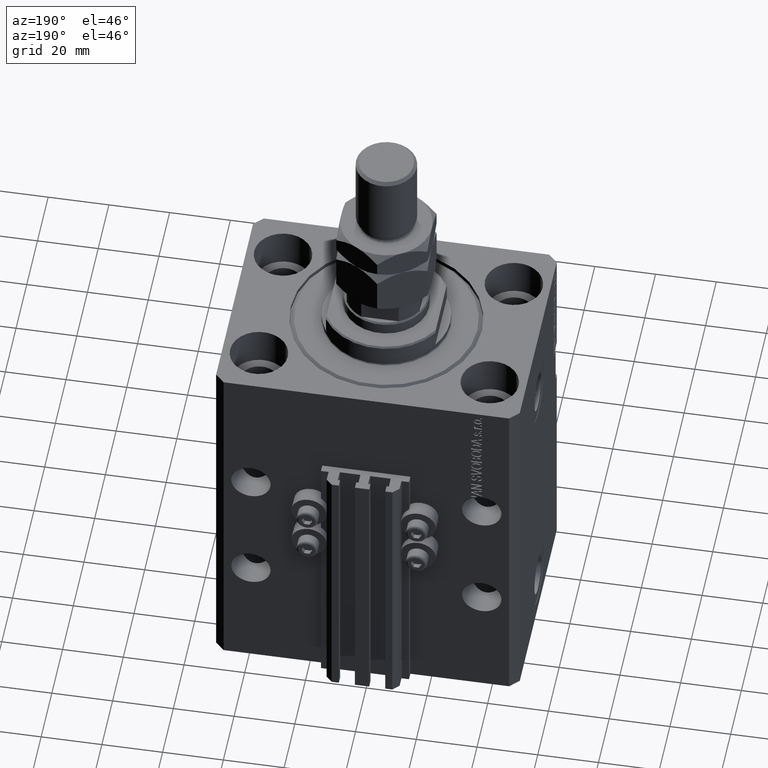
[diagram: clean part render]
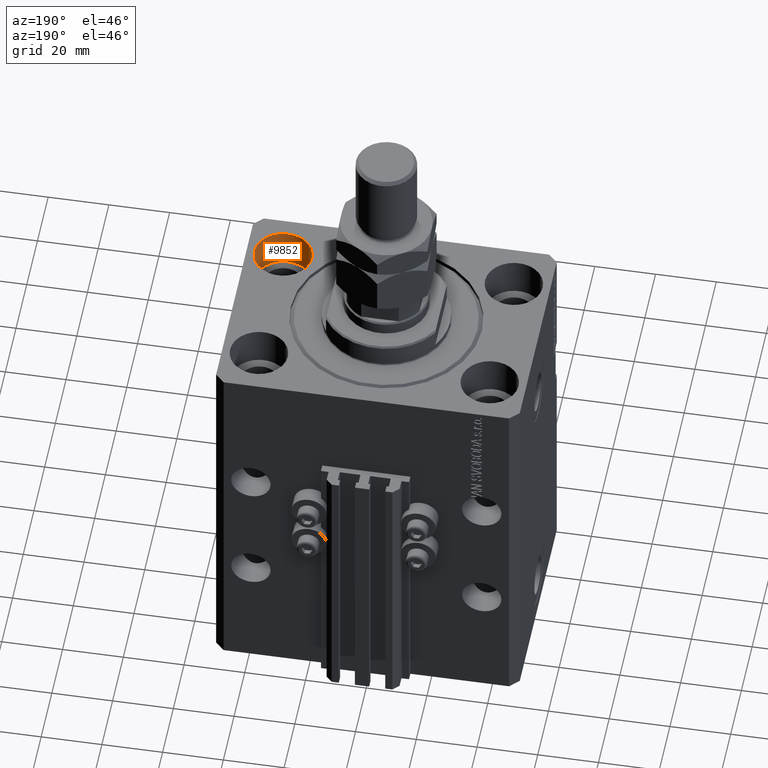
[diagram: same view with one face highlighted and labeled with its STEP entity id]
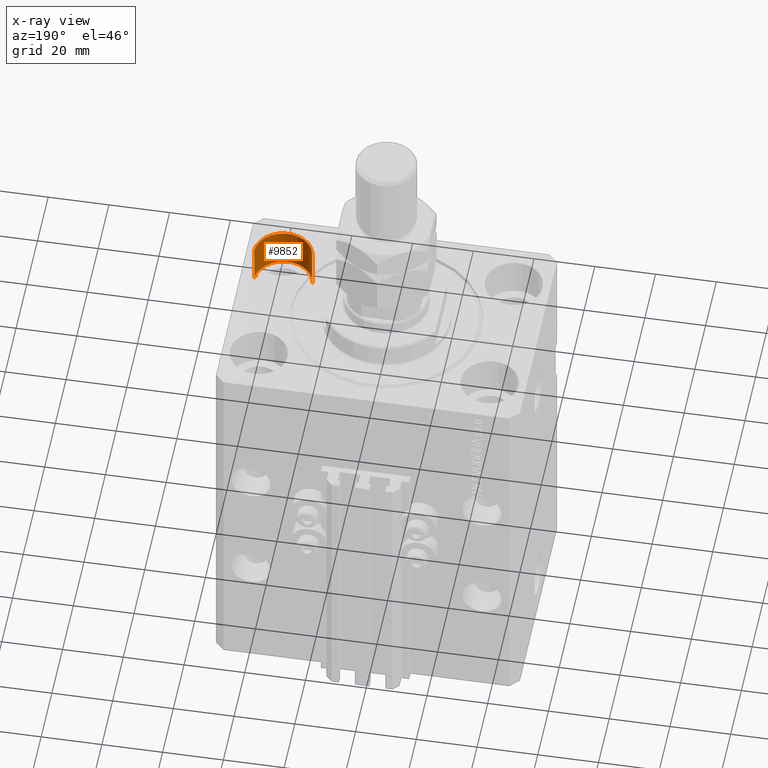
[diagram: x-ray of the same camera — body ghosted, the highlighted face saturated]
A machine part, auxiliary view. The second image highlights one B-rep face of the part: STEP entity #9852.
The next image is the same camera in x-ray: the body ghosted, the highlighted face saturated — about 0% of this face is hidden behind the body in this view.
In plain terms, the highlighted cylindrical surface (edge-blend (fillet) strip) has radius 9.5 mm, axis along (0, 0, 1).
Its self-contained STEP definition (entity closure, byte-faithful):
#3332 = VERTEX_POINT ( 'NONE', #44823 ) ;
#7215 = CARTESIAN_POINT ( 'NONE',  ( 47.50000000000000711, -22.50000000000000000, -13.00000000000000000 ) ) ;
#8516 = CARTESIAN_POINT ( 'NONE',  ( 47.50000000000000711, -22.50000000000000000, 0.000000000000000000 ) ) ;
#9218 = EDGE_CURVE ( 'NONE', #12915, #3332, #37258, .T. ) ;
#9852 = ADVANCED_FACE ( 'NONE', ( #33307 ), #48833, .F. ) ;
#11244 = DIRECTION ( 'NONE',  ( 1.000000000000000000, 0.000000000000000000, 0.000000000000000000 ) ) ;
#12915 = VERTEX_POINT ( 'NONE', #20307 ) ;
#13529 = ORIENTED_EDGE ( 'NONE', *, *, #20360, .F. ) ;
#13996 = CARTESIAN_POINT ( 'NONE',  ( 38.00000000000000711, -22.50000000000000000, -13.00000000000000000 ) ) ;
#17107 = DIRECTION ( 'NONE',  ( 0.000000000000000000, 0.000000000000000000, 1.000000000000000000 ) ) ;
#17161 = DIRECTION ( 'NONE',  ( -0.000000000000000000, -0.000000000000000000, 1.000000000000000000 ) ) ;
#17643 = DIRECTION ( 'NONE',  ( -0.000000000000000000, -0.000000000000000000, 1.000000000000000000 ) ) ;
#19101 = ORIENTED_EDGE ( 'NONE', *, *, #9218, .T. ) ;
#20307 = CARTESIAN_POINT ( 'NONE',  ( 28.50000000000000355, -22.50000000000000000, -13.00000000000000000 ) ) ;
#20360 = EDGE_CURVE ( 'NONE', #41953, #27810, #42063, .T. ) ;
#24164 = AXIS2_PLACEMENT_3D ( 'NONE', #13996, #29494, #45017 ) ;
#27810 = VERTEX_POINT ( 'NONE', #8516 ) ;
#28379 = CARTESIAN_POINT ( 'NONE',  ( 47.50000000000000711, -22.50000000000000000, -13.00000000000000000 ) ) ;
#28761 = ORIENTED_EDGE ( 'NONE', *, *, #45552, .T. ) ;
#29016 = VECTOR ( 'NONE', #17161, 1000.000000000000000 ) ;
#29321 = CARTESIAN_POINT ( 'NONE',  ( 38.00000000000000711, -22.50000000000000000, 0.000000000000000000 ) ) ;
#29494 = DIRECTION ( 'NONE',  ( -0.000000000000000000, -0.000000000000000000, 1.000000000000000000 ) ) ;
#31351 = ORIENTED_EDGE ( 'NONE', *, *, #45771, .F. ) ;
#33307 = FACE_OUTER_BOUND ( 'NONE', #40039, .T. ) ;
#37258 = LINE ( 'NONE', #48451, #29016 ) ;
#40039 = EDGE_LOOP ( 'NONE', ( #31351, #19101, #28761, #13529 ) ) ;
#40270 = DIRECTION ( 'NONE',  ( 1.000000000000000000, 0.000000000000000000, 0.000000000000000000 ) ) ;
#40410 = AXIS2_PLACEMENT_3D ( 'NONE', #29321, #17107, #40270 ) ;
#41953 = VERTEX_POINT ( 'NONE', #28379 ) ;
#42049 = CIRCLE ( 'NONE', #40410, 9.500000000000001776 ) ;
#42063 = LINE ( 'NONE', #7215, #47203 ) ;
#44823 = CARTESIAN_POINT ( 'NONE',  ( 28.50000000000000355, -22.50000000000000000, 0.000000000000000000 ) ) ;
#45017 = DIRECTION ( 'NONE',  ( 1.000000000000000000, 0.000000000000000000, 0.000000000000000000 ) ) ;
#45089 = CARTESIAN_POINT ( 'NONE',  ( 38.00000000000000711, -22.50000000000000000, -13.00000000000000000 ) ) ;
#45552 = EDGE_CURVE ( 'NONE', #3332, #27810, #42049, .T. ) ;
#45771 = EDGE_CURVE ( 'NONE', #12915, #41953, #49339, .T. ) ;
#46907 = AXIS2_PLACEMENT_3D ( 'NONE', #45089, #49907, #11244 ) ;
#47203 = VECTOR ( 'NONE', #17643, 1000.000000000000000 ) ;
#48451 = CARTESIAN_POINT ( 'NONE',  ( 28.50000000000000355, -22.50000000000000000, -13.00000000000000000 ) ) ;
#48833 = CYLINDRICAL_SURFACE ( 'NONE', #24164, 9.500000000000001776 ) ;
#49339 = CIRCLE ( 'NONE', #46907, 9.500000000000001776 ) ;
#49907 = DIRECTION ( 'NONE',  ( 0.000000000000000000, 0.000000000000000000, 1.000000000000000000 ) ) ;